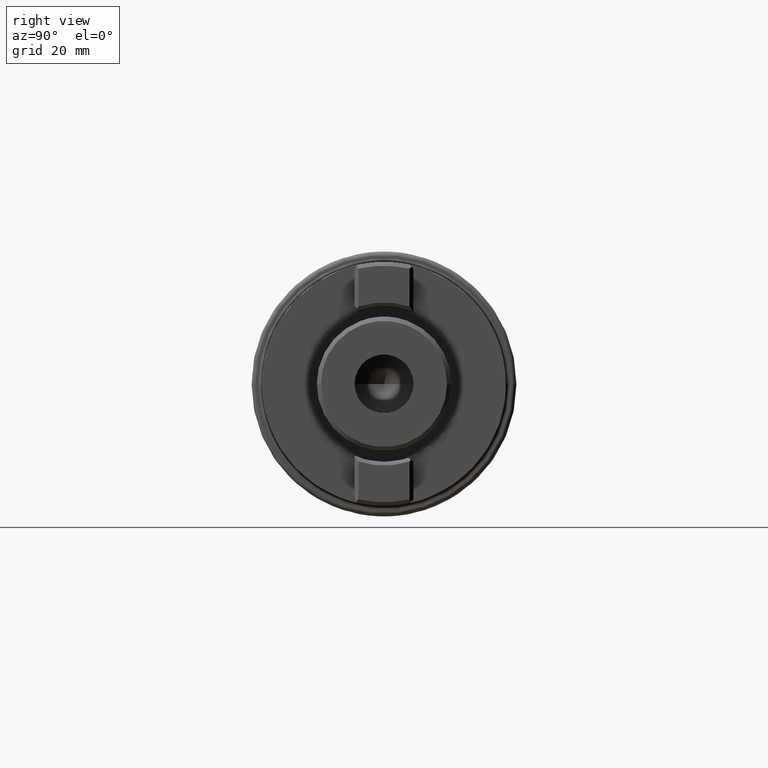
[diagram: clean part render]
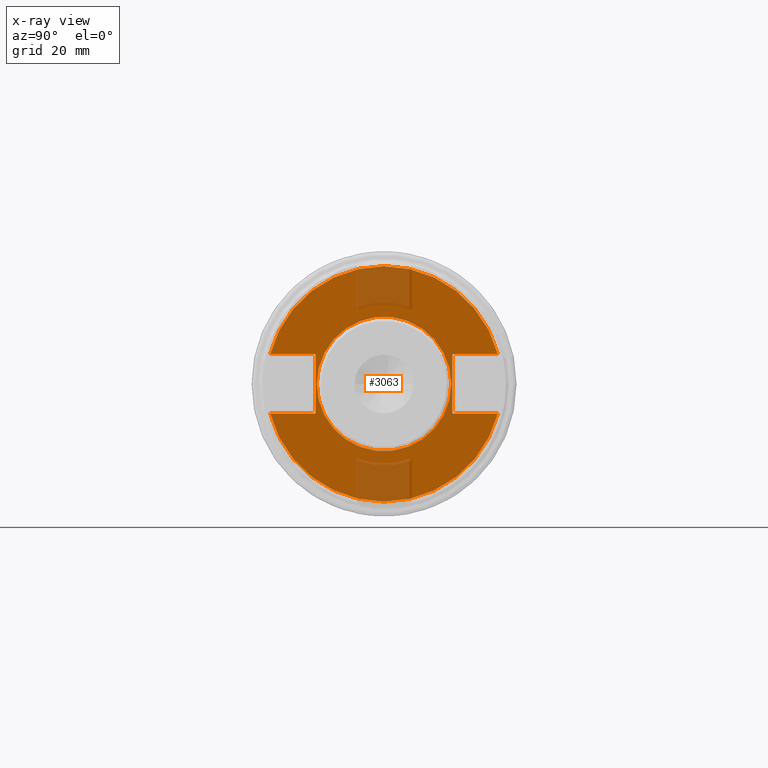
[diagram: x-ray — body ghosted, one internal face saturated and labeled with its STEP entity id]
A machine part, right view, then the same camera in x-ray: the body is ghosted and one INTERNAL B-rep face — a face not visible from any outside direction — is saturated and labeled: STEP entity #3063.
In plain terms, the highlighted planar face has unit normal (1, 0, 0).
Its self-contained STEP definition (entity closure, byte-faithful):
#952=CARTESIAN_POINT('',(4.6E1,0.E0,0.E0));
#953=DIRECTION('',(1.E0,0.E0,0.E0));
#954=DIRECTION('',(0.E0,9.677830098124E-1,2.517857142857E-1));
#955=AXIS2_PLACEMENT_3D('',#952,#953,#954);
#968=CARTESIAN_POINT('',(4.6E1,0.E0,0.E0));
#969=DIRECTION('',(1.E0,0.E0,0.E0));
#970=DIRECTION('',(0.E0,-9.677830098124E-1,-2.517857142857E-1));
#971=AXIS2_PLACEMENT_3D('',#968,#969,#970);
#988=CARTESIAN_POINT('',(4.6E1,0.E0,0.E0));
#989=DIRECTION('',(1.E0,0.E0,0.E0));
#990=DIRECTION('',(0.E0,1.E0,0.E0));
#991=AXIS2_PLACEMENT_3D('',#988,#989,#990);
#993=CARTESIAN_POINT('',(4.6E1,0.E0,0.E0));
#994=DIRECTION('',(-1.E0,0.E0,0.E0));
#995=DIRECTION('',(0.E0,1.E0,0.E0));
#996=AXIS2_PLACEMENT_3D('',#993,#994,#995);
#998=DIRECTION('',(0.E0,0.E0,-1.E0));
#999=VECTOR('',#998,1.41E1);
#1000=CARTESIAN_POINT('',(4.6E1,-1.625E1,7.05E0));
#1001=LINE('',#1000,#999);
#1002=DIRECTION('',(0.E0,1.E0,0.E0));
#1003=VECTOR('',#1002,1.084792427475E1);
#1004=CARTESIAN_POINT('',(4.6E1,-2.709792427475E1,7.05E0));
#1005=LINE('',#1004,#1003);
#1006=DIRECTION('',(0.E0,-1.E0,0.E0));
#1007=VECTOR('',#1006,1.084792427475E1);
#1008=CARTESIAN_POINT('',(4.6E1,2.709792427475E1,7.05E0));
#1009=LINE('',#1008,#1007);
#1010=DIRECTION('',(0.E0,0.E0,-1.E0));
#1011=VECTOR('',#1010,1.41E1);
#1012=CARTESIAN_POINT('',(4.6E1,1.625E1,7.05E0));
#1013=LINE('',#1012,#1011);
#1014=DIRECTION('',(0.E0,-1.E0,0.E0));
#1015=VECTOR('',#1014,1.084792427475E1);
#1016=CARTESIAN_POINT('',(4.6E1,2.709792427475E1,-7.05E0));
#1017=LINE('',#1016,#1015);
#1018=DIRECTION('',(0.E0,1.E0,0.E0));
#1019=VECTOR('',#1018,1.084792427475E1);
#1020=CARTESIAN_POINT('',(4.6E1,-2.709792427475E1,-7.05E0));
#1021=LINE('',#1020,#1019);
#1698=CARTESIAN_POINT('',(4.6E1,1.6E1,0.E0));
#1699=CARTESIAN_POINT('',(4.6E1,-1.6E1,0.E0));
#1700=VERTEX_POINT('',#1698);
#1701=VERTEX_POINT('',#1699);
#1732=CARTESIAN_POINT('',(4.6E1,1.625E1,7.05E0));
#1733=CARTESIAN_POINT('',(4.6E1,1.625E1,-7.05E0));
#1734=VERTEX_POINT('',#1732);
#1735=VERTEX_POINT('',#1733);
#1736=CARTESIAN_POINT('',(4.6E1,2.709792427475E1,7.05E0));
#1737=VERTEX_POINT('',#1736);
#1738=CARTESIAN_POINT('',(4.6E1,2.709792427475E1,-7.05E0));
#1739=VERTEX_POINT('',#1738);
#1751=CARTESIAN_POINT('',(4.6E1,-1.625E1,7.05E0));
#1752=VERTEX_POINT('',#1751);
#1753=CARTESIAN_POINT('',(4.6E1,-1.625E1,-7.05E0));
#1754=VERTEX_POINT('',#1753);
#1759=CARTESIAN_POINT('',(4.6E1,-2.709792427475E1,7.05E0));
#1760=VERTEX_POINT('',#1759);
#1761=CARTESIAN_POINT('',(4.6E1,-2.709792427475E1,-7.05E0));
#1762=VERTEX_POINT('',#1761);
#3040=CARTESIAN_POINT('',(4.6E1,0.E0,0.E0));
#3041=DIRECTION('',(1.E0,0.E0,0.E0));
#3042=DIRECTION('',(0.E0,-1.E0,0.E0));
#3043=AXIS2_PLACEMENT_3D('',#3040,#3041,#3042);
#3044=PLANE('',#3043);
#3045=ORIENTED_EDGE('',*,*,#2973,.F.);
#3046=ORIENTED_EDGE('',*,*,#2990,.F.);
#3047=ORIENTED_EDGE('',*,*,#3004,.F.);
#3048=ORIENTED_EDGE('',*,*,#3029,.T.);
#3050=ORIENTED_EDGE('',*,*,#3049,.T.);
#3052=ORIENTED_EDGE('',*,*,#3051,.F.);
#3053=ORIENTED_EDGE('',*,*,#3015,.F.);
#3054=ORIENTED_EDGE('',*,*,#2956,.T.);
#3055=EDGE_LOOP('',(#3045,#3046,#3047,#3048,#3050,#3052,#3053,#3054));
#3056=FACE_OUTER_BOUND('',#3055,.F.);
#3058=ORIENTED_EDGE('',*,*,#3057,.T.);
#3060=ORIENTED_EDGE('',*,*,#3059,.F.);
#3061=EDGE_LOOP('',(#3058,#3060));
#3062=FACE_BOUND('',#3061,.F.);
#3063=ADVANCED_FACE('',(#3056,#3062),#3044,.T.);
#956=CIRCLE('',#955,2.8E1);
#972=CIRCLE('',#971,2.8E1);
#992=CIRCLE('',#991,1.6E1);
#997=CIRCLE('',#996,1.6E1);
#2956=EDGE_CURVE('',#1762,#1754,#1021,.T.);
#2973=EDGE_CURVE('',#1752,#1754,#1001,.T.);
#2990=EDGE_CURVE('',#1760,#1752,#1005,.T.);
#3004=EDGE_CURVE('',#1737,#1760,#956,.T.);
#3015=EDGE_CURVE('',#1762,#1739,#972,.T.);
#3029=EDGE_CURVE('',#1737,#1734,#1009,.T.);
#3049=EDGE_CURVE('',#1734,#1735,#1013,.T.);
#3051=EDGE_CURVE('',#1739,#1735,#1017,.T.);
#3057=EDGE_CURVE('',#1700,#1701,#992,.T.);
#3059=EDGE_CURVE('',#1700,#1701,#997,.T.);